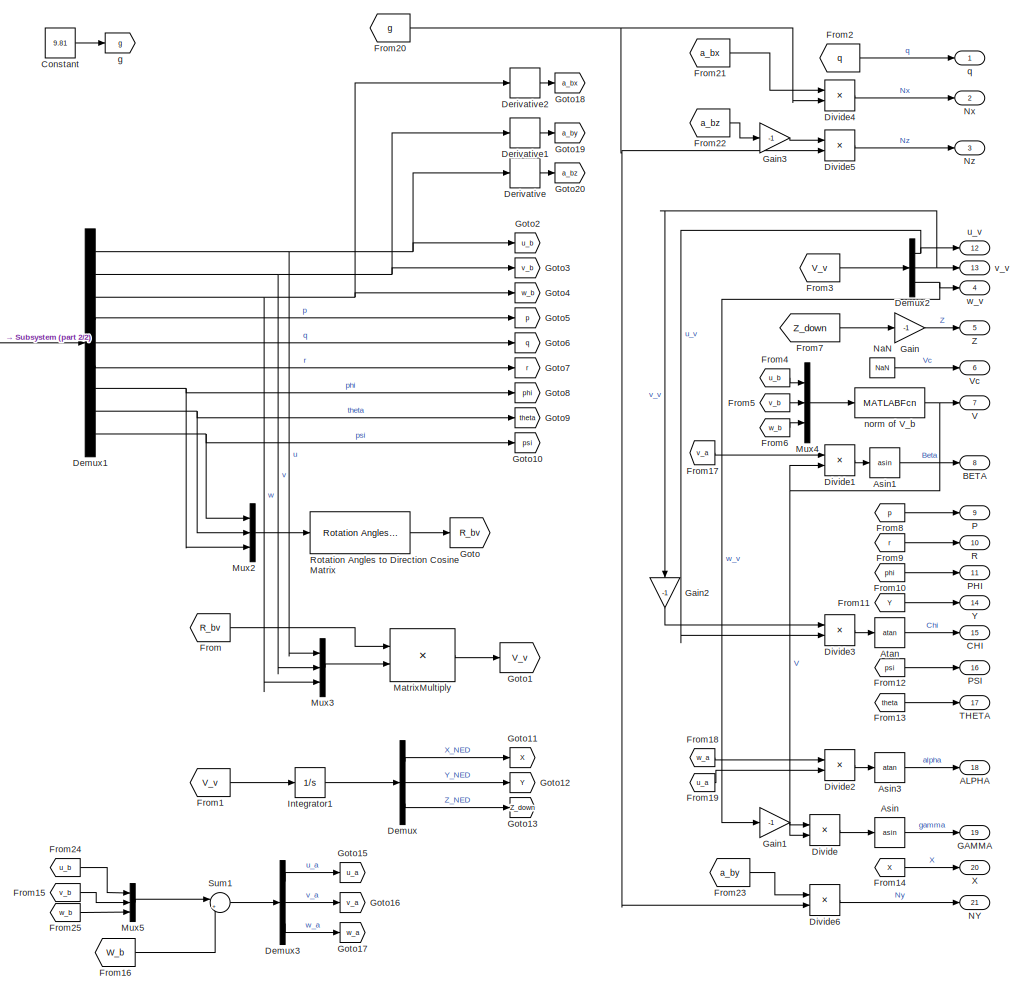
[diagram: root canvas - part 1/2, right side, full height]
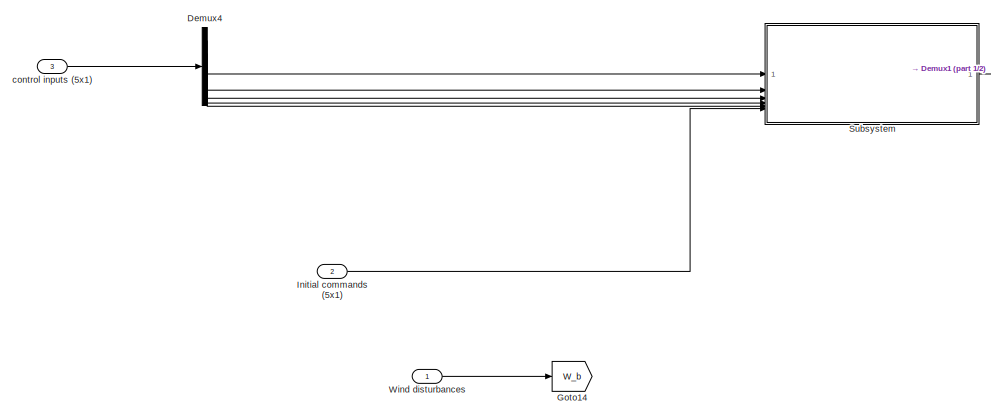
[diagram: root canvas - part 2/2, middle left region]
MODEL slx_5e9619f6f32c
KIND model
CONFIG AbsTol = auto
CONFIG EnableMultiTasking = off
CONFIG FixedStep = auto
CONFIG MaxStep = auto
CONFIG MinStep = auto
CONFIG RelTol = 1e-3
CONFIG SampleTimeConstraint = Unconstrained
CONFIG SolverName = VariableStepAuto
CONFIG StartTime = 0.0
CONFIG StopTime = TF
WORKSPACE source: mxarray member
WORKSPACE op_trim1: opcond.OperatingReport (value not decoded)
WORKSPACE op_trim4: opcond.OperatingReport (value not decoded)
BLOCK [Outport] ALPHA
  Port = 18
BLOCK [Trigonometry] Asin
  NameLocation = right
  Operator = asin
BLOCK [Trigonometry] Asin1
  NameLocation = right
  Operator = asin
BLOCK [Trigonometry] Asin3
  NameLocation = right
  Operator = atan
BLOCK [Trigonometry] Atan
  Operator = atan
BLOCK [Outport] BETA
  Port = 8
BLOCK [Outport] CHI
  Port = 15
BLOCK [Constant] Constant
  Value = 9.81
BLOCK [Demux] Demux
  Outputs = 3
BLOCK [Demux] Demux1
  Outputs = 9
BLOCK [Demux] Demux2
  Outputs = 3
BLOCK [Demux] Demux3
  Outputs = 3
BLOCK [Demux] Demux4
  Outputs = 5
BLOCK [Derivative] Derivative
BLOCK [Derivative] Derivative1
BLOCK [Derivative] Derivative2
BLOCK [Product] Divide
  Inputs = */
BLOCK [Product] Divide1
  Inputs = */
BLOCK [Product] Divide2
  Inputs = */
BLOCK [Product] Divide3
  Inputs = */
BLOCK [Product] Divide4
  Inputs = */
BLOCK [Product] Divide5
  Inputs = */
BLOCK [Product] Divide6
  Inputs = */
BLOCK [From] From
  GotoTag = R_bv
BLOCK [From] From1
  GotoTag = V_v
BLOCK [From] From10
  GotoTag = phi
BLOCK [From] From11
  GotoTag = Y
BLOCK [From] From12
  GotoTag = psi
BLOCK [From] From13
  GotoTag = theta
BLOCK [From] From14
  GotoTag = X
BLOCK [From] From15
  GotoTag = v_b
BLOCK [From] From16
  GotoTag = W_b
BLOCK [From] From17
  GotoTag = v_a
BLOCK [From] From18
  GotoTag = w_a
BLOCK [From] From19
  GotoTag = u_a
BLOCK [From] From2
  GotoTag = q
BLOCK [From] From20
  GotoTag = g
BLOCK [From] From21
  GotoTag = a_bx
BLOCK [From] From22
  GotoTag = a_bz
BLOCK [From] From23
  GotoTag = a_by
BLOCK [From] From24
  GotoTag = u_b
BLOCK [From] From25
  GotoTag = w_b
BLOCK [From] From3
  GotoTag = V_v
BLOCK [From] From4
  GotoTag = u_b
BLOCK [From] From5
  GotoTag = v_b
BLOCK [From] From6
  GotoTag = w_b
BLOCK [From] From7
  GotoTag = Z_down
BLOCK [From] From8
  GotoTag = p
BLOCK [From] From9
  GotoTag = r
BLOCK [Outport] GAMMA
  Port = 19
BLOCK [Gain] Gain
  Gain = -1
BLOCK [Gain] Gain1
  Gain = -1
BLOCK [Gain] Gain2
  Gain = -1
  NameLocation = left
BLOCK [Gain] Gain3
  Gain = -1
BLOCK [Goto] Goto
  GotoTag = R_bv
BLOCK [Goto] Goto1
  GotoTag = V_v
BLOCK [Goto] Goto10
  GotoTag = psi
BLOCK [Goto] Goto11
  GotoTag = X
BLOCK [Goto] Goto12
  GotoTag = Y
BLOCK [Goto] Goto13
  GotoTag = Z_down
BLOCK [Goto] Goto14
  GotoTag = W_b
BLOCK [Goto] Goto15
  GotoTag = u_a
BLOCK [Goto] Goto16
  GotoTag = v_a
BLOCK [Goto] Goto17
  GotoTag = w_a
BLOCK [Goto] Goto18
  GotoTag = a_bx
BLOCK [Goto] Goto19
  GotoTag = a_by
BLOCK [Goto] Goto2
  GotoTag = u_b
BLOCK [Goto] Goto20
  GotoTag = a_bz
BLOCK [Goto] Goto3
  GotoTag = v_b
BLOCK [Goto] Goto4
  GotoTag = w_b
BLOCK [Goto] Goto5
  GotoTag = p
BLOCK [Goto] Goto6
  GotoTag = q
BLOCK [Goto] Goto7
  GotoTag = r
BLOCK [Goto] Goto8
  GotoTag = phi
BLOCK [Goto] Goto9
  GotoTag = theta
BLOCK [Inport] Initial commands (5x1)
  Port = 2
BLOCK [Integrator] Integrator1
  InitialCondition = XYZ0
BLOCK [Product] MatrixMultiply
  Multiplication = Matrix(*)
BLOCK [Mux] Mux2
  DisplayOption = bar
  Inputs = 3
BLOCK [Mux] Mux3
  DisplayOption = bar
  Inputs = 3
BLOCK [Mux] Mux4
  DisplayOption = bar
  Inputs = 3
BLOCK [Mux] Mux5
  DisplayOption = bar
  Inputs = 3
BLOCK [Outport] NY
  Port = 21
BLOCK [Constant] NaN
  OutDataTypeStr = Inherit: Inherit via back propagation
  Value = NaN
BLOCK [Outport] Nx
  Port = 2
BLOCK [Outport] Nz
  Port = 3
BLOCK [Outport] P
  Port = 9
BLOCK [Outport] PHI
  Port = 11
BLOCK [Outport] PSI
  Port = 16
BLOCK [Outport] R
  Port = 10
BLOCK [Reference] Rotation Angles to Direction Cosine Matrix  REF=sharedtransform/Rotation Angles to
Direction Cosine Matrix
  AttributesFormatString = Rotation Order: %<rotationOrder>
  LibrarySourceBlock = aerolibtransform2/Rotation Angles to\nDirection Cosine Matrix
  SourceBlock = sharedtransform/Rotation Angles to\nDirection Cosine Matrix
  SourceType = Ang2DCM
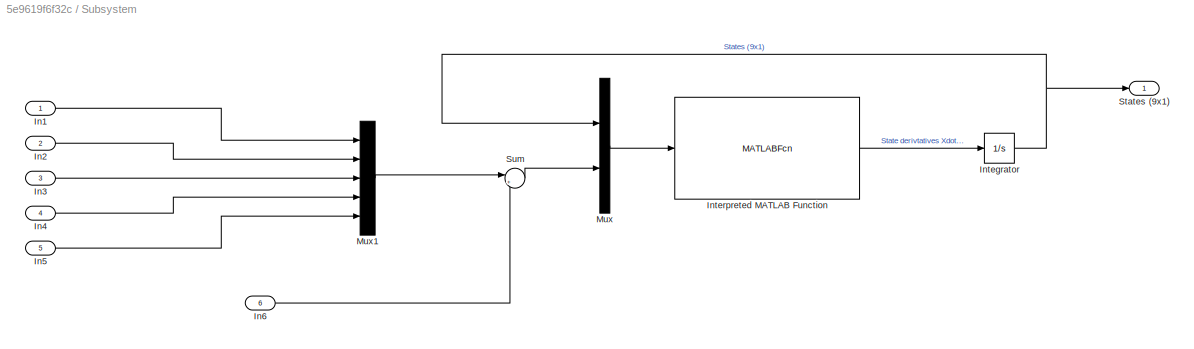
BLOCK [SubSystem] Subsystem
BLOCK [Inport] Subsystem/In1
BLOCK [Inport] Subsystem/In2
  Port = 2
BLOCK [Inport] Subsystem/In3
  Port = 3
BLOCK [Inport] Subsystem/In4
  Port = 4
BLOCK [Inport] Subsystem/In5
  Port = 5
BLOCK [Inport] Subsystem/In6
  Port = 6
BLOCK [Integrator] Subsystem/Integrator
  InitialCondition = X0
BLOCK [MATLABFcn] Subsystem/Interpreted MATLAB Function
  MATLABFcn = RCAM_model(u(1:9),u(10:14))
BLOCK [Mux] Subsystem/Mux
  DisplayOption = bar
  Inputs = 2
BLOCK [Mux] Subsystem/Mux1
  DisplayOption = bar
  Inputs = 5
BLOCK [Outport] Subsystem/States (9x1)
BLOCK [Sum] Subsystem/Sum
  Inputs = |++
BLOCK [Sum] Sum1
  Inputs = |+-
BLOCK [Outport] THETA
  Port = 17
BLOCK [Outport] V
  Port = 7
BLOCK [Outport] Vc
  Port = 6
BLOCK [Inport] Wind disturbances
BLOCK [Outport] X
  Port = 20
BLOCK [Outport] Y
  Port = 14
BLOCK [Outport] Z
  Port = 5
BLOCK [Inport] control inputs (5x1)
  Port = 3
BLOCK [Goto] g
  GotoTag = g
BLOCK [MATLABFcn] norm of V_b
  MATLABFcn = sqrt(sum(u(1)^2+u(2)^2+u(3)^2))
BLOCK [Outport] q
BLOCK [Outport] u_v
  Port = 12
BLOCK [Outport] v_v
  Port = 13
BLOCK [Outport] w_v
  Port = 4
LINE Asin1:1 -> BETA:1
LINE Asin3:1 -> ALPHA:1
LINE Asin:1 -> GAMMA:1
LINE Atan:1 -> CHI:1
LINE Constant:1 -> g:1
NET Demux1:1 -> Derivative:1, Goto2:1, Mux3:1
NET Demux1:2 -> Derivative1:1, Goto3:1, Mux3:2
NET Demux1:3 -> Derivative2:1, Goto4:1, Mux3:3
LINE Demux1:4 -> Goto5:1
LINE Demux1:5 -> Goto6:1
LINE Demux1:6 -> Goto7:1
NET Demux1:7 -> Goto8:1, Mux2:3
NET Demux1:8 -> Goto9:1, Mux2:2
NET Demux1:9 -> Goto10:1, Mux2:1
NET Demux2:1 -> Divide3:2, u_v:1
NET Demux2:2 -> Gain2:1, v_v:1
NET Demux2:3 -> Gain1:1, w_v:1
LINE Demux3:1 -> Goto15:1
LINE Demux3:2 -> Goto16:1
LINE Demux3:3 -> Goto17:1
LINE Demux4:1 -> Subsystem:1
LINE Demux4:2 -> Subsystem:2
LINE Demux4:3 -> Subsystem:3
LINE Demux4:4 -> Subsystem:4
LINE Demux4:5 -> Subsystem:5
LINE Demux:1 -> Goto11:1
LINE Demux:2 -> Goto12:1
LINE Demux:3 -> Goto13:1
LINE Derivative1:1 -> Goto19:1
LINE Derivative2:1 -> Goto18:1
LINE Derivative:1 -> Goto20:1
LINE Divide1:1 -> Asin1:1
LINE Divide2:1 -> Asin3:1
LINE Divide3:1 -> Atan:1
LINE Divide4:1 -> Nx:1
LINE Divide5:1 -> Nz:1
LINE Divide6:1 -> NY:1
LINE Divide:1 -> Asin:1
LINE From10:1 -> PHI:1
LINE From11:1 -> Y:1
LINE From12:1 -> PSI:1
LINE From13:1 -> THETA:1
LINE From14:1 -> X:1
LINE From15:1 -> Mux5:2
LINE From16:1 -> Sum1:2
LINE From17:1 -> Divide1:1
LINE From18:1 -> Divide2:1
LINE From19:1 -> Divide2:2
LINE From1:1 -> Integrator1:1
NET From20:1 -> Divide4:2, Divide5:2, Divide6:2
LINE From21:1 -> Divide4:1
LINE From22:1 -> Gain3:1
LINE From23:1 -> Divide6:1
LINE From24:1 -> Mux5:1
LINE From25:1 -> Mux5:3
LINE From2:1 -> q:1
LINE From3:1 -> Demux2:1
LINE From4:1 -> Mux4:1
LINE From5:1 -> Mux4:2
LINE From6:1 -> Mux4:3
LINE From7:1 -> Gain:1
LINE From8:1 -> P:1
LINE From9:1 -> R:1
LINE From:1 -> MatrixMultiply:1
LINE Gain1:1 -> Divide:1
LINE Gain2:1 -> Divide3:1
LINE Gain3:1 -> Divide5:1
LINE Gain:1 -> Z:1
LINE Initial commands (5x1):1 -> Subsystem:6
LINE Integrator1:1 -> Demux:1
LINE MatrixMultiply:1 -> Goto1:1
LINE Mux2:1 -> Rotation Angles to Direction Cosine Matrix:1
LINE Mux3:1 -> MatrixMultiply:2
LINE Mux4:1 -> norm of V_b:1
LINE Mux5:1 -> Sum1:1
LINE NaN:1 -> Vc:1
LINE Rotation Angles to Direction Cosine Matrix:1 -> Goto:1
LINE Subsystem/In1:1 -> Subsystem/Mux1:1
LINE Subsystem/In2:1 -> Subsystem/Mux1:2
LINE Subsystem/In3:1 -> Subsystem/Mux1:3
LINE Subsystem/In4:1 -> Subsystem/Mux1:4
LINE Subsystem/In5:1 -> Subsystem/Mux1:5
LINE Subsystem/In6:1 -> Subsystem/Sum:2
NET Subsystem/Integrator:1 -> Subsystem/Mux:1, Subsystem/States (9x1):1
LINE Subsystem/Interpreted MATLAB Function:1 -> Subsystem/Integrator:1
LINE Subsystem/Mux1:1 -> Subsystem/Sum:1
LINE Subsystem/Mux:1 -> Subsystem/Interpreted MATLAB Function:1
LINE Subsystem/Sum:1 -> Subsystem/Mux:2
LINE Subsystem:1 -> Demux1:1
LINE Sum1:1 -> Demux3:1
LINE Wind disturbances:1 -> Goto14:1
LINE control inputs (5x1):1 -> Demux4:1
NET norm of V_b:1 -> Divide1:2, Divide:2, V:1
note: NET lines group one-source signal fan-out (src -> all destinations, sorted); 1:1 wires keep LINE
